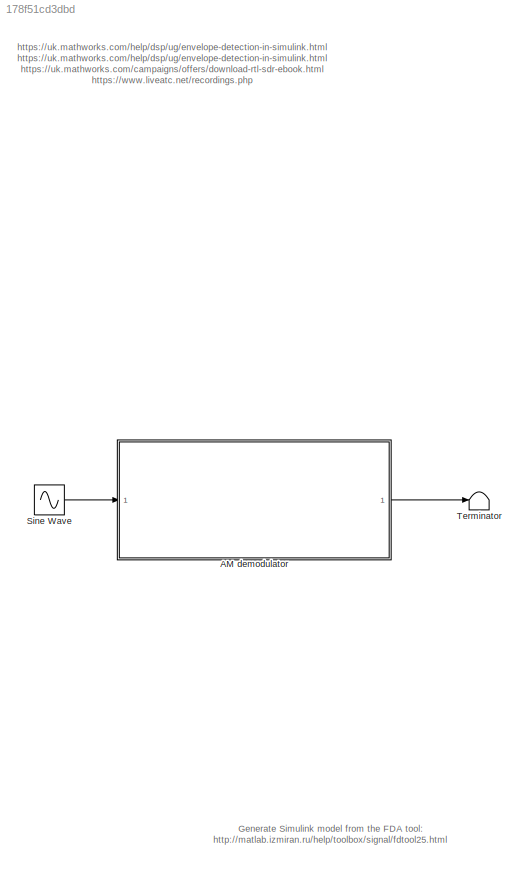
MODEL slx_178f51cd3dbd
KIND model
CONFIG AbsTol = auto
CONFIG EnableMultiTasking = off
CONFIG FixedStep = auto
CONFIG MaxStep = auto
CONFIG MinStep = auto
CONFIG RelTol = 1e-3
CONFIG SampleTimeConstraint = Unconstrained
CONFIG SolverName = VariableStepAuto
CONFIG StartTime = 0.0
CONFIG StopTime = 10
WORKSPACE source: mxarray member
WORKSPACE mwTaskManagerKernelLatency = 0
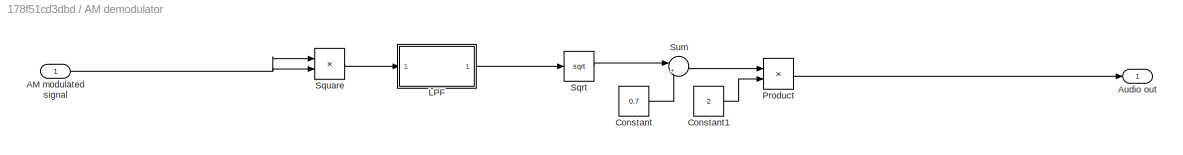
BLOCK [SubSystem] AM demodulator
  Ports = [1, 1]
  RequestExecContextInheritance = off
BLOCK [Inport] AM demodulator/AM modulated signal
  SampleTime = 1e-6
BLOCK [Outport] AM demodulator/Audio out
BLOCK [Constant] AM demodulator/Constant
  SampleTime = 1e-6
  Value = 0.7
BLOCK [Constant] AM demodulator/Constant1
  SampleTime = 1e-6
  Value = 2
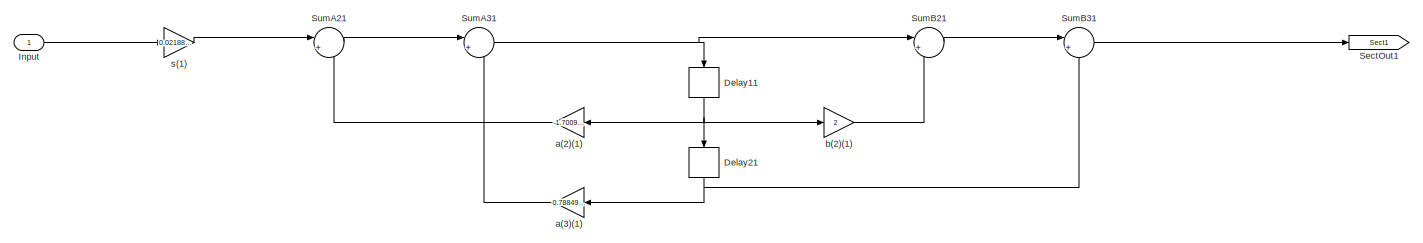
[diagram: AM demodulator/LPF - part 1/2, left side, full height]
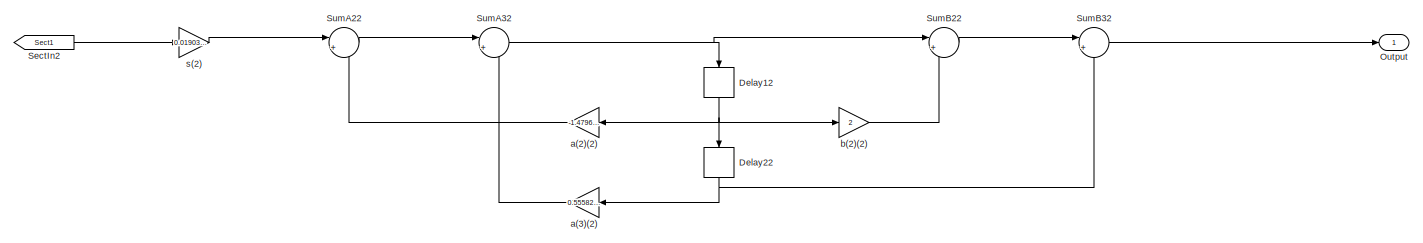
[diagram: AM demodulator/LPF - part 2/2, right side, full height]
BLOCK [SubSystem] AM demodulator/LPF
  ErrorFcn = dspFilterRealizedInBasicElemsAlgLoopErrFcnCallback
  Ports = [1, 1]
  RequestExecContextInheritance = off
  Tag = FilterWizardSubSystem
  UserDataPersistent = on
BLOCK [Delay] AM demodulator/LPF/Delay11
  DelayLength = 1
  InitialCondition = 0
  InputPortMap = u0
  NameLocation = right
  Ports = [1, 1]
BLOCK [Delay] AM demodulator/LPF/Delay12
  DelayLength = 1
  InitialCondition = 0
  InputPortMap = u0
  NameLocation = right
  Ports = [1, 1]
BLOCK [Delay] AM demodulator/LPF/Delay21
  DelayLength = 1
  InitialCondition = 0
  InputPortMap = u0
  NameLocation = right
  Ports = [1, 1]
BLOCK [Delay] AM demodulator/LPF/Delay22
  DelayLength = 1
  InitialCondition = 0
  InputPortMap = u0
  NameLocation = right
  Ports = [1, 1]
BLOCK [Inport] AM demodulator/LPF/Input
BLOCK [Outport] AM demodulator/LPF/Output
BLOCK [From] AM demodulator/LPF/SectIn2
  GotoTag = Sect1
BLOCK [Goto] AM demodulator/LPF/SectOut1
  GotoTag = Sect1
BLOCK [Sum] AM demodulator/LPF/SumA21
  Inputs = |+-
  OutDataTypeStr = Inherit: Same as first input
  Ports = [2, 1]
  RndMeth = Nearest
  SaturateOnIntegerOverflow = on
BLOCK [Sum] AM demodulator/LPF/SumA22
  Inputs = |+-
  OutDataTypeStr = Inherit: Same as first input
  Ports = [2, 1]
  RndMeth = Nearest
  SaturateOnIntegerOverflow = on
BLOCK [Sum] AM demodulator/LPF/SumA31
  Inputs = |+-
  OutDataTypeStr = Inherit: Same as first input
  Ports = [2, 1]
  RndMeth = Nearest
  SaturateOnIntegerOverflow = on
BLOCK [Sum] AM demodulator/LPF/SumA32
  Inputs = |+-
  OutDataTypeStr = Inherit: Same as first input
  Ports = [2, 1]
  RndMeth = Nearest
  SaturateOnIntegerOverflow = on
BLOCK [Sum] AM demodulator/LPF/SumB21
  Inputs = |++
  OutDataTypeStr = Inherit: Same as first input
  Ports = [2, 1]
  RndMeth = Nearest
  SaturateOnIntegerOverflow = on
BLOCK [Sum] AM demodulator/LPF/SumB22
  Inputs = |++
  OutDataTypeStr = Inherit: Same as first input
  Ports = [2, 1]
  RndMeth = Nearest
  SaturateOnIntegerOverflow = on
BLOCK [Sum] AM demodulator/LPF/SumB31
  Inputs = |++
  OutDataTypeStr = Inherit: Same as first input
  Ports = [2, 1]
  RndMeth = Nearest
  SaturateOnIntegerOverflow = on
BLOCK [Sum] AM demodulator/LPF/SumB32
  Inputs = |++
  OutDataTypeStr = Inherit: Same as first input
  Ports = [2, 1]
  RndMeth = Nearest
  SaturateOnIntegerOverflow = on
BLOCK [Gain] AM demodulator/LPF/a(2)(1)
  Gain = -1.70096433194352592
  OutDataTypeStr = Inherit: Same as input
  ParamDataTypeStr = double
  RndMeth = Nearest
  SaturateOnIntegerOverflow = on
BLOCK [Gain] AM demodulator/LPF/a(2)(2)
  Gain = -1.47967421693119339
  OutDataTypeStr = Inherit: Same as input
  ParamDataTypeStr = double
  RndMeth = Nearest
  SaturateOnIntegerOverflow = on
BLOCK [Gain] AM demodulator/LPF/a(3)(1)
  Gain = 0.788499739815297973
  OutDataTypeStr = Inherit: Same as input
  ParamDataTypeStr = double
  RndMeth = Nearest
  SaturateOnIntegerOverflow = on
BLOCK [Gain] AM demodulator/LPF/a(3)(2)
  Gain = 0.555821543282489006
  OutDataTypeStr = Inherit: Same as input
  ParamDataTypeStr = double
  RndMeth = Nearest
  SaturateOnIntegerOverflow = on
BLOCK [Gain] AM demodulator/LPF/b(2)(1)
  Gain = 2
  OutDataTypeStr = Inherit: Same as input
  ParamDataTypeStr = double
  RndMeth = Nearest
  SaturateOnIntegerOverflow = on
BLOCK [Gain] AM demodulator/LPF/b(2)(2)
  Gain = 2
  OutDataTypeStr = Inherit: Same as input
  ParamDataTypeStr = double
  RndMeth = Nearest
  SaturateOnIntegerOverflow = on
BLOCK [Gain] AM demodulator/LPF/s(1)
  Gain = 0.0218838519679430236
  OutDataTypeStr = Inherit: Same as input
  ParamDataTypeStr = double
  RndMeth = Nearest
  SaturateOnIntegerOverflow = on
BLOCK [Gain] AM demodulator/LPF/s(2)
  Gain = 0.0190368315878238735
  OutDataTypeStr = Inherit: Same as input
  ParamDataTypeStr = double
  RndMeth = Nearest
  SaturateOnIntegerOverflow = on
BLOCK [Product] AM demodulator/Product
  Ports = [2, 1]
BLOCK [Sqrt] AM demodulator/Sqrt
BLOCK [Product] AM demodulator/Square
  Ports = [2, 1]
BLOCK [Sum] AM demodulator/Sum
  Inputs = |+-
  Ports = [2, 1]
BLOCK [Sin] Sine Wave
  Ports = [0, 1]
  SampleTime = 1e-6
BLOCK [Terminator] Terminator
ANNOTATION (root): Generate Simulink model from the FDA tool: http://matlab.izmiran.ru/help/toolbox/signal/fdtool25.htm l
ANNOTATION (root): https://uk.mathworks.com/help/dsp/ug/envelope-detection-in-simulink.html https://uk.mathworks.com/help/dsp/ug/envelope-detection-in-simulink.htm l https://uk.mathworks.com/campaigns/offers/download-rtl-sdr-ebook.html https://www.liveatc.net/recordings.php
NET AM demodulator/AM modulated signal:1 -> AM demodulator/Square:1, AM demodulator/Square:2
LINE AM demodulator/Constant1:1 -> AM demodulator/Product:2
LINE AM demodulator/Constant:1 -> AM demodulator/Sum:2
NET AM demodulator/LPF/Delay11:1 -> AM demodulator/LPF/Delay21:1, AM demodulator/LPF/a(2)(1):1, AM demodulator/LPF/b(2)(1):1
NET AM demodulator/LPF/Delay12:1 -> AM demodulator/LPF/Delay22:1, AM demodulator/LPF/a(2)(2):1, AM demodulator/LPF/b(2)(2):1
NET AM demodulator/LPF/Delay21:1 -> AM demodulator/LPF/SumB31:2, AM demodulator/LPF/a(3)(1):1
NET AM demodulator/LPF/Delay22:1 -> AM demodulator/LPF/SumB32:2, AM demodulator/LPF/a(3)(2):1
LINE AM demodulator/LPF/Input:1 -> AM demodulator/LPF/s(1):1
LINE AM demodulator/LPF/SectIn2:1 -> AM demodulator/LPF/s(2):1
LINE AM demodulator/LPF/SumA21:1 -> AM demodulator/LPF/SumA31:1
LINE AM demodulator/LPF/SumA22:1 -> AM demodulator/LPF/SumA32:1
NET AM demodulator/LPF/SumA31:1 -> AM demodulator/LPF/Delay11:1, AM demodulator/LPF/SumB21:1
NET AM demodulator/LPF/SumA32:1 -> AM demodulator/LPF/Delay12:1, AM demodulator/LPF/SumB22:1
LINE AM demodulator/LPF/SumB21:1 -> AM demodulator/LPF/SumB31:1
LINE AM demodulator/LPF/SumB22:1 -> AM demodulator/LPF/SumB32:1
LINE AM demodulator/LPF/SumB31:1 -> AM demodulator/LPF/SectOut1:1
LINE AM demodulator/LPF/SumB32:1 -> AM demodulator/LPF/Output:1
LINE AM demodulator/LPF/a(2)(1):1 -> AM demodulator/LPF/SumA21:2
LINE AM demodulator/LPF/a(2)(2):1 -> AM demodulator/LPF/SumA22:2
LINE AM demodulator/LPF/a(3)(1):1 -> AM demodulator/LPF/SumA31:2
LINE AM demodulator/LPF/a(3)(2):1 -> AM demodulator/LPF/SumA32:2
LINE AM demodulator/LPF/b(2)(1):1 -> AM demodulator/LPF/SumB21:2
LINE AM demodulator/LPF/b(2)(2):1 -> AM demodulator/LPF/SumB22:2
LINE AM demodulator/LPF/s(1):1 -> AM demodulator/LPF/SumA21:1
LINE AM demodulator/LPF/s(2):1 -> AM demodulator/LPF/SumA22:1
LINE AM demodulator/LPF:1 -> AM demodulator/Sqrt:1
LINE AM demodulator/Product:1 -> AM demodulator/Audio out:1
LINE AM demodulator/Sqrt:1 -> AM demodulator/Sum:1
LINE AM demodulator/Square:1 -> AM demodulator/LPF:1
LINE AM demodulator/Sum:1 -> AM demodulator/Product:1
LINE AM demodulator:1 -> Terminator:1
LINE Sine Wave:1 -> AM demodulator:1
note: NET lines group one-source signal fan-out (src -> all destinations, sorted); 1:1 wires keep LINE
